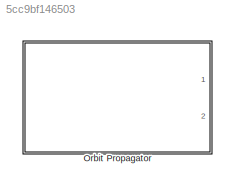
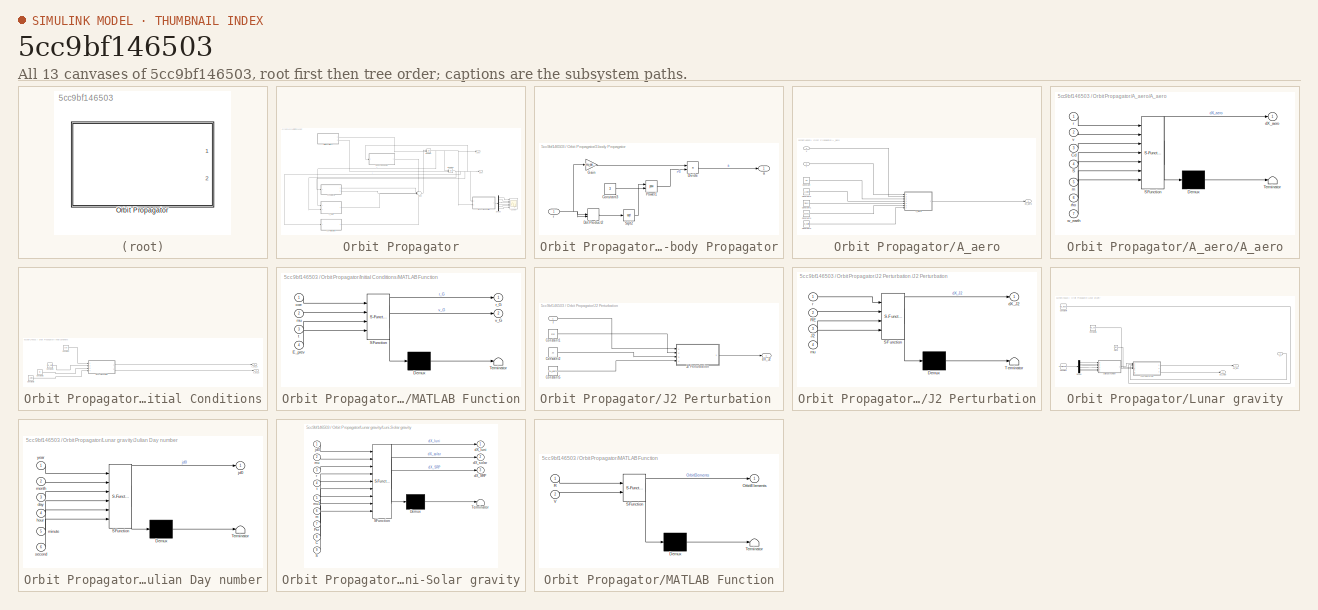
[diagram: thumbnail index - all 13 canvases of the model, root first then tree order]
MODEL slx_5cc9bf146503
KIND model
CONFIG AbsTol = auto
CONFIG EnableMultiTasking = off
CONFIG FixedStep = auto
CONFIG MaxStep = auto
CONFIG MinStep = auto
CONFIG RelTol = 1e-3
CONFIG SampleTimeConstraint = Unconstrained
CONFIG Solver = VariableStepAuto
CONFIG SolverName = VariableStepAuto
CONFIG StartTime = 0.0
CONFIG StopTime = 10.0
BLOCK [SubSystem] Orbit Propagator
  Ports = [0, 2]
  RequestExecContextInheritance = off
BLOCK [SubSystem] Orbit Propagator/2-body Propagator
  Ports = [1, 1]
  RequestExecContextInheritance = off
BLOCK [Constant] Orbit Propagator/2-body Propagator/Constant3
  Value = 3
BLOCK [Product] Orbit Propagator/2-body Propagator/Divide
  InputSameDT = off
  Inputs = */
  OutDataTypeStr = Inherit: Inherit via internal rule
  Ports = [2, 1]
  RndMeth = Floor
  SaturateOnIntegerOverflow = off
BLOCK [DotProduct] Orbit Propagator/2-body Propagator/Dot Product2
  OutDataTypeStr = Inherit: Inherit via internal rule
BLOCK [Gain] Orbit Propagator/2-body Propagator/Gain
  Gain = -mu_earth
  OutDataTypeStr = Inherit: Inherit via internal rule
  ParamDataTypeStr = Inherit: Inherit via internal rule
  SaturateOnIntegerOverflow = off
BLOCK [Math] Orbit Propagator/2-body Propagator/Power1
  Operator = pow
  Ports = [2, 1]
BLOCK [Sqrt] Orbit Propagator/2-body Propagator/Sqrt2
BLOCK [Outport] Orbit Propagator/2-body Propagator/a
  IconDisplay = Port number
BLOCK [Inport] Orbit Propagator/2-body Propagator/r
  IconDisplay = Port number
BLOCK [SubSystem] Orbit Propagator/A_aero
  Commented = on
  Ports = [2, 1]
  RequestExecContextInheritance = off
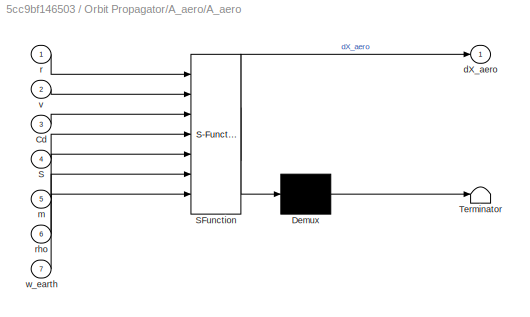
BLOCK [SubSystem] Orbit Propagator/A_aero/A_aero
  ErrorFcn = Stateflow.Translate.translate
  PermitHierarchicalResolution = ExplicitOnly
  Ports = [7, 1]
  RequestExecContextInheritance = off
  SFBlockType = MATLAB Function
  TreatAsAtomicUnit = on
BLOCK [Demux] Orbit Propagator/A_aero/A_aero/ Demux 
  Outputs = 1
  Ports = [1, 1]
BLOCK [S-Function] Orbit Propagator/A_aero/A_aero/ SFunction 
  EnableBusSupport = on
  FunctionName = sf_sfun
  PortCounts = [7 2]
  Ports = [7, 2]
  SFcnIsStateOwnerBlock = off
  SFunctionDeploymentMode = off
  Tag = Stateflow S-Function OrbitPropagator 2
BLOCK [Terminator] Orbit Propagator/A_aero/A_aero/ Terminator 
BLOCK [Inport] Orbit Propagator/A_aero/A_aero/Cd
  IconDisplay = Port number
  Port = 3
BLOCK [Inport] Orbit Propagator/A_aero/A_aero/S
  IconDisplay = Port number
  Port = 4
BLOCK [Outport] Orbit Propagator/A_aero/A_aero/dX_aero
  IconDisplay = Port number
BLOCK [Inport] Orbit Propagator/A_aero/A_aero/m
  IconDisplay = Port number
  Port = 5
BLOCK [Inport] Orbit Propagator/A_aero/A_aero/r
  IconDisplay = Port number
BLOCK [Inport] Orbit Propagator/A_aero/A_aero/rho
  IconDisplay = Port number
  Port = 6
BLOCK [Inport] Orbit Propagator/A_aero/A_aero/v
  IconDisplay = Port number
  Port = 2
BLOCK [Inport] Orbit Propagator/A_aero/A_aero/w_earth
  IconDisplay = Port number
  Port = 7
BLOCK [Constant] Orbit Propagator/A_aero/Constant
  Value = Cd
BLOCK [Constant] Orbit Propagator/A_aero/Constant1
  Value = mass
BLOCK [Constant] Orbit Propagator/A_aero/Constant2
  Value = S_norm
BLOCK [Constant] Orbit Propagator/A_aero/Constant3
  Value = w_earth
BLOCK [Constant] Orbit Propagator/A_aero/Constant4
  Value = 2.01e-12
BLOCK [Outport] Orbit Propagator/A_aero/dX_aero
  IconDisplay = Port number
BLOCK [Inport] Orbit Propagator/A_aero/r
  IconDisplay = Port number
  Port = 2
BLOCK [Inport] Orbit Propagator/A_aero/v
  IconDisplay = Port number
BLOCK [Demux] Orbit Propagator/Demux
  DisplayOption = bar
  Outputs = 6
  Ports = [1, 6]
BLOCK [SubSystem] Orbit Propagator/Initial Conditions
  Ports = [0, 2]
  RequestExecContextInheritance = off
BLOCK [Constant] Orbit Propagator/Initial Conditions/Constant
  Value = coe
BLOCK [Constant] Orbit Propagator/Initial Conditions/Constant1
  Value = mu_earth
BLOCK [Constant] Orbit Propagator/Initial Conditions/Constant2
  Value = t0
BLOCK [Constant] Orbit Propagator/Initial Conditions/Constant3
  Value = E_prev
BLOCK [SubSystem] Orbit Propagator/Initial Conditions/MATLAB Function
  ErrorFcn = Stateflow.Translate.translate
  PermitHierarchicalResolution = ExplicitOnly
  Ports = [4, 2]
  RequestExecContextInheritance = off
  SFBlockType = MATLAB Function
  TreatAsAtomicUnit = on
BLOCK [Demux] Orbit Propagator/Initial Conditions/MATLAB Function/ Demux 
  Outputs = 1
  Ports = [1, 1]
BLOCK [S-Function] Orbit Propagator/Initial Conditions/MATLAB Function/ SFunction 
  EnableBusSupport = on
  FunctionName = sf_sfun
  PortCounts = [4 3]
  Ports = [4, 3]
  SFcnIsStateOwnerBlock = off
  SFunctionDeploymentMode = off
  Tag = Stateflow S-Function OrbitPropagator 3
BLOCK [Terminator] Orbit Propagator/Initial Conditions/MATLAB Function/ Terminator 
BLOCK [Inport] Orbit Propagator/Initial Conditions/MATLAB Function/E_prev
  IconDisplay = Port number
  Port = 4
BLOCK [Inport] Orbit Propagator/Initial Conditions/MATLAB Function/coe
  IconDisplay = Port number
BLOCK [Inport] Orbit Propagator/Initial Conditions/MATLAB Function/mu
  IconDisplay = Port number
  Port = 2
BLOCK [Outport] Orbit Propagator/Initial Conditions/MATLAB Function/r_G
  IconDisplay = Port number
BLOCK [Inport] Orbit Propagator/Initial Conditions/MATLAB Function/t
  IconDisplay = Port number
  Port = 3
BLOCK [Outport] Orbit Propagator/Initial Conditions/MATLAB Function/v_G
  IconDisplay = Port number
  Port = 2
BLOCK [Outport] Orbit Propagator/Initial Conditions/r_eci_0
  IconDisplay = Port number
  Port = 2
BLOCK [Outport] Orbit Propagator/Initial Conditions/v_eci_0
  IconDisplay = Port number
BLOCK [Integrator] Orbit Propagator/Integrator
  InitialCondition = v0
  InitialConditionSource = external
  Ports = [2, 1]
BLOCK [Integrator] Orbit Propagator/Integrator1
  InitialCondition = v0
  InitialConditionSource = external
  Ports = [2, 1]
BLOCK [SubSystem] Orbit Propagator/J2 Perturbation 
  Ports = [1, 1]
  RequestExecContextInheritance = off
BLOCK [Constant] Orbit Propagator/J2 Perturbation /Constant1
  Value = RE
BLOCK [Constant] Orbit Propagator/J2 Perturbation /Constant2
  Value = J2
BLOCK [Constant] Orbit Propagator/J2 Perturbation /Constant5
  Value = mu_earth
BLOCK [SubSystem] Orbit Propagator/J2 Perturbation /J2 Perturbation
  ErrorFcn = Stateflow.Translate.translate
  PermitHierarchicalResolution = ExplicitOnly
  Ports = [4, 1]
  RequestExecContextInheritance = off
  SFBlockType = MATLAB Function
  TreatAsAtomicUnit = on
BLOCK [Demux] Orbit Propagator/J2 Perturbation /J2 Perturbation/ Demux 
  Outputs = 1
  Ports = [1, 1]
BLOCK [S-Function] Orbit Propagator/J2 Perturbation /J2 Perturbation/ SFunction 
  EnableBusSupport = on
  FunctionName = sf_sfun
  PortCounts = [4 2]
  Ports = [4, 2]
  SFcnIsStateOwnerBlock = off
  SFunctionDeploymentMode = off
  Tag = Stateflow S-Function OrbitPropagator 1
BLOCK [Terminator] Orbit Propagator/J2 Perturbation /J2 Perturbation/ Terminator 
BLOCK [Inport] Orbit Propagator/J2 Perturbation /J2 Perturbation/J2
  IconDisplay = Port number
  Port = 3
BLOCK [Inport] Orbit Propagator/J2 Perturbation /J2 Perturbation/RE
  IconDisplay = Port number
  Port = 2
BLOCK [Outport] Orbit Propagator/J2 Perturbation /J2 Perturbation/dX_J2
  IconDisplay = Port number
BLOCK [Inport] Orbit Propagator/J2 Perturbation /J2 Perturbation/mu
  IconDisplay = Port number
  Port = 4
BLOCK [Inport] Orbit Propagator/J2 Perturbation /J2 Perturbation/r
  IconDisplay = Port number
BLOCK [Outport] Orbit Propagator/J2 Perturbation /dX_J2
  IconDisplay = Port number
BLOCK [Inport] Orbit Propagator/J2 Perturbation /r
  IconDisplay = Port number
BLOCK [SubSystem] Orbit Propagator/Lunar gravity
  Commented = on
  Ports = [1, 2]
  RequestExecContextInheritance = off
BLOCK [Clock] Orbit Propagator/Lunar gravity/Clock
BLOCK [Constant] Orbit Propagator/Lunar gravity/Constant
  Value = [year,month,day,hours,minutes,seconds]
BLOCK [Constant] Orbit Propagator/Lunar gravity/Constant4
  Value = mu_moon
BLOCK [Constant] Orbit Propagator/Lunar gravity/Constant6
  Value = mu_sun
BLOCK [Demux] Orbit Propagator/Lunar gravity/Demux
  DisplayOption = bar
  Outputs = 6
  Ports = [1, 6]
BLOCK [SubSystem] Orbit Propagator/Lunar gravity/Julian Day number
  ErrorFcn = Stateflow.Translate.translate
  PermitHierarchicalResolution = ExplicitOnly
  Ports = [6, 1]
  RequestExecContextInheritance = off
  SFBlockType = MATLAB Function
  TreatAsAtomicUnit = on
BLOCK [Demux] Orbit Propagator/Lunar gravity/Julian Day number/ Demux 
  Outputs = 1
  Ports = [1, 1]
BLOCK [S-Function] Orbit Propagator/Lunar gravity/Julian Day number/ SFunction 
  EnableBusSupport = on
  FunctionName = sf_sfun
  PortCounts = [6 2]
  Ports = [6, 2]
  SFcnIsStateOwnerBlock = off
  SFunctionDeploymentMode = off
  Tag = Stateflow S-Function OrbitPropagator 4
BLOCK [Terminator] Orbit Propagator/Lunar gravity/Julian Day number/ Terminator 
BLOCK [Inport] Orbit Propagator/Lunar gravity/Julian Day number/day
  IconDisplay = Port number
  Port = 3
BLOCK [Inport] Orbit Propagator/Lunar gravity/Julian Day number/hour
  IconDisplay = Port number
  Port = 4
BLOCK [Outport] Orbit Propagator/Lunar gravity/Julian Day number/jd0
  IconDisplay = Port number
BLOCK [Inport] Orbit Propagator/Lunar gravity/Julian Day number/minute
  IconDisplay = Port number
  Port = 5
BLOCK [Inport] Orbit Propagator/Lunar gravity/Julian Day number/month
  IconDisplay = Port number
  Port = 2
BLOCK [Inport] Orbit Propagator/Lunar gravity/Julian Day number/second
  IconDisplay = Port number
  Port = 6
BLOCK [Inport] Orbit Propagator/Lunar gravity/Julian Day number/year
  IconDisplay = Port number
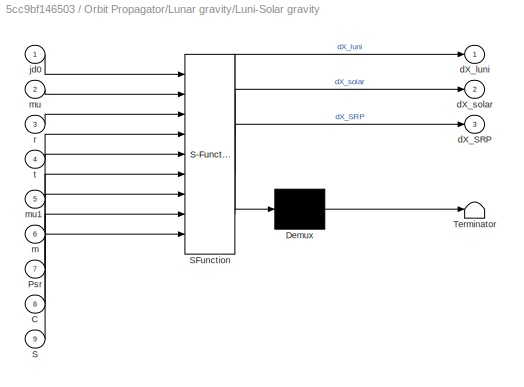
BLOCK [SubSystem] Orbit Propagator/Lunar gravity/Luni-Solar gravity
  ErrorFcn = Stateflow.Translate.translate
  PermitHierarchicalResolution = ExplicitOnly
  Ports = [9, 3]
  RequestExecContextInheritance = off
  SFBlockType = MATLAB Function
  TreatAsAtomicUnit = on
BLOCK [Demux] Orbit Propagator/Lunar gravity/Luni-Solar gravity/ Demux 
  Outputs = 1
  Ports = [1, 1]
BLOCK [S-Function] Orbit Propagator/Lunar gravity/Luni-Solar gravity/ SFunction 
  EnableBusSupport = on
  FunctionName = sf_sfun
  PortCounts = [9 4]
  Ports = [9, 4]
  SFcnIsStateOwnerBlock = off
  SFunctionDeploymentMode = off
  Tag = Stateflow S-Function OrbitPropagator 5
BLOCK [Terminator] Orbit Propagator/Lunar gravity/Luni-Solar gravity/ Terminator 
BLOCK [Inport] Orbit Propagator/Lunar gravity/Luni-Solar gravity/C
  IconDisplay = Port number
  Port = 8
BLOCK [Inport] Orbit Propagator/Lunar gravity/Luni-Solar gravity/Psr
  IconDisplay = Port number
  Port = 7
BLOCK [Inport] Orbit Propagator/Lunar gravity/Luni-Solar gravity/S
  IconDisplay = Port number
  Port = 9
BLOCK [Outport] Orbit Propagator/Lunar gravity/Luni-Solar gravity/dX_SRP
  IconDisplay = Port number
  Port = 3
BLOCK [Outport] Orbit Propagator/Lunar gravity/Luni-Solar gravity/dX_luni
  IconDisplay = Port number
BLOCK [Outport] Orbit Propagator/Lunar gravity/Luni-Solar gravity/dX_solar
  IconDisplay = Port number
  Port = 2
BLOCK [Inport] Orbit Propagator/Lunar gravity/Luni-Solar gravity/jd0
  IconDisplay = Port number
BLOCK [Inport] Orbit Propagator/Lunar gravity/Luni-Solar gravity/m
  IconDisplay = Port number
  Port = 6
BLOCK [Inport] Orbit Propagator/Lunar gravity/Luni-Solar gravity/mu
  IconDisplay = Port number
  Port = 2
BLOCK [Inport] Orbit Propagator/Lunar gravity/Luni-Solar gravity/mu1
  IconDisplay = Port number
  Port = 5
BLOCK [Inport] Orbit Propagator/Lunar gravity/Luni-Solar gravity/r
  IconDisplay = Port number
  Port = 3
BLOCK [Inport] Orbit Propagator/Lunar gravity/Luni-Solar gravity/t
  IconDisplay = Port number
  Port = 4
BLOCK [Outport] Orbit Propagator/Lunar gravity/dX_luni
  IconDisplay = Port number
BLOCK [Outport] Orbit Propagator/Lunar gravity/dX_solar
  IconDisplay = Port number
  Port = 2
BLOCK [Inport] Orbit Propagator/Lunar gravity/r
  IconDisplay = Port number
BLOCK [SubSystem] Orbit Propagator/MATLAB Function
  ErrorFcn = Stateflow.Translate.translate
  PermitHierarchicalResolution = ExplicitOnly
  Ports = [2, 1]
  RequestExecContextInheritance = off
  SFBlockType = MATLAB Function
  TreatAsAtomicUnit = on
BLOCK [Demux] Orbit Propagator/MATLAB Function/ Demux 
  Outputs = 1
  Ports = [1, 1]
BLOCK [S-Function] Orbit Propagator/MATLAB Function/ SFunction 
  EnableBusSupport = on
  FunctionName = sf_sfun
  PortCounts = [2 2]
  Ports = [2, 2]
  SFcnIsStateOwnerBlock = off
  SFunctionDeploymentMode = off
  Tag = Stateflow S-Function OrbitPropagator 9
BLOCK [Terminator] Orbit Propagator/MATLAB Function/ Terminator 
BLOCK [Outport] Orbit Propagator/MATLAB Function/OrbitElements
  IconDisplay = Port number
BLOCK [Inport] Orbit Propagator/MATLAB Function/R
  IconDisplay = Port number
BLOCK [Inport] Orbit Propagator/MATLAB Function/V
  IconDisplay = Port number
  Port = 2
BLOCK [Scope] Orbit Propagator/Scope
  Floating = off
  NumInputPorts = 6
  Ports = [6]
  ScopeSpecificationString = Simulink.scopes.TimeScopeBlockCfg('CurrentConfiguration', extmgr.ConfigurationSet(extmgr.Configuration('Core','General UI',true),extmgr.Configuration('Core','Source UI',true),extmgr.Configuration('Sources','WiredSimulink',true,'DataLoggingVariableName','ScopeData2'),extmgr.Configuration('Visuals','Time Domain',true,'SerializedDisplays',{struct('MinYLimReal','6606562.10759','MaxYLimReal','7662454.0...<+4798ch>
BLOCK [Sum] Orbit Propagator/Sum
  IconShape = round
  InputSameDT = off
  Inputs = +++++
  OutDataTypeStr = Inherit: Inherit via internal rule
  Ports = [5, 1]
  SaturateOnIntegerOverflow = off
BLOCK [Outport] Orbit Propagator/r_eci
  IconDisplay = Port number
  Port = 2
BLOCK [Outport] Orbit Propagator/v_eci
  IconDisplay = Port number
LINE Orbit Propagator/2-body Propagator/Constant3:1 -> Orbit Propagator/2-body Propagator/Power1:2
LINE Orbit Propagator/2-body Propagator/Divide:1 -> Orbit Propagator/2-body Propagator/a:1
LINE Orbit Propagator/2-body Propagator/Dot Product2:1 -> Orbit Propagator/2-body Propagator/Sqrt2:1
LINE Orbit Propagator/2-body Propagator/Gain:1 -> Orbit Propagator/2-body Propagator/Divide:1
LINE Orbit Propagator/2-body Propagator/Power1:1 -> Orbit Propagator/2-body Propagator/Divide:2
LINE Orbit Propagator/2-body Propagator/Sqrt2:1 -> Orbit Propagator/2-body Propagator/Power1:1
NET Orbit Propagator/2-body Propagator/r:1 -> Orbit Propagator/2-body Propagator/Dot Product2:1, Orbit Propagator/2-body Propagator/Dot Product2:2, Orbit Propagator/2-body Propagator/Gain:1
LINE Orbit Propagator/2-body Propagator:1 -> Orbit Propagator/Sum:1
LINE Orbit Propagator/A_aero/A_aero:1 -> Orbit Propagator/A_aero/dX_aero:1
LINE Orbit Propagator/A_aero/Constant1:1 -> Orbit Propagator/A_aero/A_aero:5
LINE Orbit Propagator/A_aero/Constant2:1 -> Orbit Propagator/A_aero/A_aero:4
LINE Orbit Propagator/A_aero/Constant3:1 -> Orbit Propagator/A_aero/A_aero:7
LINE Orbit Propagator/A_aero/Constant4:1 -> Orbit Propagator/A_aero/A_aero:6
LINE Orbit Propagator/A_aero/Constant:1 -> Orbit Propagator/A_aero/A_aero:3
LINE Orbit Propagator/A_aero/r:1 -> Orbit Propagator/A_aero/A_aero:1
LINE Orbit Propagator/A_aero/v:1 -> Orbit Propagator/A_aero/A_aero:2
LINE Orbit Propagator/A_aero:1 -> Orbit Propagator/Sum:4
LINE Orbit Propagator/Demux:1 -> Orbit Propagator/Scope:1
LINE Orbit Propagator/Demux:2 -> Orbit Propagator/Scope:2
LINE Orbit Propagator/Demux:3 -> Orbit Propagator/Scope:3
LINE Orbit Propagator/Demux:4 -> Orbit Propagator/Scope:4
LINE Orbit Propagator/Demux:5 -> Orbit Propagator/Scope:5
LINE Orbit Propagator/Demux:6 -> Orbit Propagator/Scope:6
LINE Orbit Propagator/Initial Conditions/Constant1:1 -> Orbit Propagator/Initial Conditions/MATLAB Function:2
LINE Orbit Propagator/Initial Conditions/Constant2:1 -> Orbit Propagator/Initial Conditions/MATLAB Function:3
LINE Orbit Propagator/Initial Conditions/Constant3:1 -> Orbit Propagator/Initial Conditions/MATLAB Function:4
LINE Orbit Propagator/Initial Conditions/Constant:1 -> Orbit Propagator/Initial Conditions/MATLAB Function:1
LINE Orbit Propagator/Initial Conditions/MATLAB Function:1 -> Orbit Propagator/Initial Conditions/r_eci_0:1
LINE Orbit Propagator/Initial Conditions/MATLAB Function:2 -> Orbit Propagator/Initial Conditions/v_eci_0:1
LINE Orbit Propagator/Initial Conditions:1 -> Orbit Propagator/Integrator:2
LINE Orbit Propagator/Initial Conditions:2 -> Orbit Propagator/Integrator1:2
NET Orbit Propagator/Integrator1:1 -> Orbit Propagator/2-body Propagator:1, Orbit Propagator/A_aero:2, Orbit Propagator/J2 Perturbation :1, Orbit Propagator/Lunar gravity:1, Orbit Propagator/MATLAB Function:1, Orbit Propagator/r_eci:1
NET Orbit Propagator/Integrator:1 -> Orbit Propagator/A_aero:1, Orbit Propagator/Integrator1:1, Orbit Propagator/MATLAB Function:2, Orbit Propagator/v_eci:1
LINE Orbit Propagator/J2 Perturbation /Constant1:1 -> Orbit Propagator/J2 Perturbation /J2 Perturbation:2
LINE Orbit Propagator/J2 Perturbation /Constant2:1 -> Orbit Propagator/J2 Perturbation /J2 Perturbation:3
LINE Orbit Propagator/J2 Perturbation /Constant5:1 -> Orbit Propagator/J2 Perturbation /J2 Perturbation:4
LINE Orbit Propagator/J2 Perturbation /J2 Perturbation:1 -> Orbit Propagator/J2 Perturbation /dX_J2:1
LINE Orbit Propagator/J2 Perturbation /r:1 -> Orbit Propagator/J2 Perturbation /J2 Perturbation:1
LINE Orbit Propagator/J2 Perturbation :1 -> Orbit Propagator/Sum:5
LINE Orbit Propagator/Lunar gravity/Clock:1 -> Orbit Propagator/Lunar gravity/Luni-Solar gravity:4
LINE Orbit Propagator/Lunar gravity/Constant4:1 -> Orbit Propagator/Lunar gravity/Luni-Solar gravity:2
LINE Orbit Propagator/Lunar gravity/Constant6:1 -> Orbit Propagator/Lunar gravity/Luni-Solar gravity:5
LINE Orbit Propagator/Lunar gravity/Constant:1 -> Orbit Propagator/Lunar gravity/Demux:1
LINE Orbit Propagator/Lunar gravity/Demux:1 -> Orbit Propagator/Lunar gravity/Julian Day number:1
LINE Orbit Propagator/Lunar gravity/Demux:2 -> Orbit Propagator/Lunar gravity/Julian Day number:2
LINE Orbit Propagator/Lunar gravity/Demux:3 -> Orbit Propagator/Lunar gravity/Julian Day number:3
LINE Orbit Propagator/Lunar gravity/Demux:4 -> Orbit Propagator/Lunar gravity/Julian Day number:4
LINE Orbit Propagator/Lunar gravity/Demux:5 -> Orbit Propagator/Lunar gravity/Julian Day number:5
LINE Orbit Propagator/Lunar gravity/Demux:6 -> Orbit Propagator/Lunar gravity/Julian Day number:6
LINE Orbit Propagator/Lunar gravity/Julian Day number:1 -> Orbit Propagator/Lunar gravity/Luni-Solar gravity:1
LINE Orbit Propagator/Lunar gravity/Luni-Solar gravity:1 -> Orbit Propagator/Lunar gravity/dX_luni:1
LINE Orbit Propagator/Lunar gravity/Luni-Solar gravity:2 -> Orbit Propagator/Lunar gravity/dX_solar:1
LINE Orbit Propagator/Lunar gravity/r:1 -> Orbit Propagator/Lunar gravity/Luni-Solar gravity:3
LINE Orbit Propagator/Lunar gravity:1 -> Orbit Propagator/Sum:2
LINE Orbit Propagator/Lunar gravity:2 -> Orbit Propagator/Sum:3
LINE Orbit Propagator/MATLAB Function:1 -> Orbit Propagator/Demux:1
LINE Orbit Propagator/Sum:1 -> Orbit Propagator/Integrator:1
note: NET lines group one-source signal fan-out (src -> all destinations, sorted); 1:1 wires keep LINE
CHART Orbit Propagator/J2 Perturbation /J2 Perturbation states=1 transitions=1
  STATE_LABEL 'eML_blk_kernel()'
  STATE_LABEL 'SCRIPT:\nfunction dX_J2 = J2(r,RE,J2,mu)\nrpp = norm(r);\nxx = r(1); yy = r(2); zz = r(3);\nfac = 3/2*J2*(mu/rpp^2)*(RE/rpp)^2;\ndX_J2 = -fac*[(1 - 5*(zz/rpp)^2)*(xx/rpp) ...\n(1 - 5*(zz/rpp)^2)*(yy/rpp) ...\n(3 - 5*(zz/rpp)^2)*(zz/rpp)];\nend\n'
CHART Orbit Propagator/A_aero/A_aero states=1 transitions=1
  STATE_LABEL 'eML_blk_kernel()'
  STATE_LABEL 'SCRIPT:\nfunction dX_aero = Aero(r,v,Cd,S,m,rho,w_earth)\nsg = (Cd*S/2*m);\nva = v - cross(w_earth,r);\nv_a = norm(va);\n\ndX_aero = sg*rho*(v_a^2)*(va/v_a);\n\nend\n'
CHART Orbit Propagator/Initial Conditions/MATLAB Function states=1 transitions=1
  STATE_LABEL 'eML_blk_kernel()'
  STATE_LABEL 'SCRIPT:\nfunction [r_G,v_G] = OrbMech(coe,mu, t, E_prev)\n%ORBMECH models the orbital mechanics of the spacecraft\n%   Assuming an ideal, non-perturbed orbit, the position of\n%   the spacecraft (in the inertial frame) is determined, using the ISS\n%   orbital elements\n\na = coe(1);e=coe(2);i=coe(3);raan=coe(4);w = coe(5);t0=coe(6);\n\n% Solve for Eccentric Anomaly (E)\nE_fun = @(E) E-e*sin(E) - sqrt(mu/a^...<+634ch>'
CHART Orbit Propagator/Lunar gravity/Julian Day number states=1 transitions=1
  STATE_LABEL 'eML_blk_kernel()'
  STATE_LABEL 'SCRIPT:\nfunction jd0 = JDnumber(year,month,day,hour,minute,second)\n% Calculates the JD number for a given year,month and day\n\nj0 = 367*year - fix(7*(year + fix((month + 9)/12))/4) + fix(275*month/9) + day + 1721013.5; \n\nut = hour + minute/60 + second/3600; % UTC time in hour format\n\njd0 = j0 + ut/24; % JD number calculation\n\n\nend\n\n'
CHART Orbit Propagator/Lunar gravity/Luni-Solar gravity states=1 transitions=1
  STATE_LABEL 'eML_blk_kernel()'
  STATE_LABEL 'SCRIPT:\nfunction [dX_luni,dX_solar,dX_SRP] = LuniSolar(jd0,mu,r,t,mu1,m,Psr,C,S)\n% Moon gravity contribution\njd_new = jd0 + t/86400;\nR_moon = Lunargravity(jd_new);\nR_ms = R_moon - r;\nr_ms = norm(R_ms);\nr_moon = norm(R_moon);\n\n% Sun gravity contribution\n[R_sun,u_sun] = Solargravity(jd_new);\nlswitch = los(r,R_sun);\nr_sun = norm(R_sun);\nR_ss = R_sun - r;\nr_ss = norm(R_ss);\nq = dot(r,(2*R_sun - r))/r_...<+202ch>'
CHART Orbit Propagator/MATLAB Function states=1 transitions=1
  STATE_LABEL 'eML_blk_kernel()'
  STATE_LABEL 'SCRIPT:\nfunction OrbitElements = StateVectorToOrbitElements(R,V)\n%{\nINPUTS:\nR: Radius Vector in ECI [km]\nV: Velocity Vector in ECI [km/s]\n\nOUTPUTS:\nStruct called "OrbitElements" with the format:\n    \'a\'     Semimajor Axis [m]\n    \'e\'     Eccentricity Magnitude\n    \'i\'     Inclination [deg]\n    \'w\'     Argument of Periapse [deg]\n    \'RAAN\'  Right Ascension of the Ascending Node [deg]\n    \'v\'     Tr...<+1671ch>'
